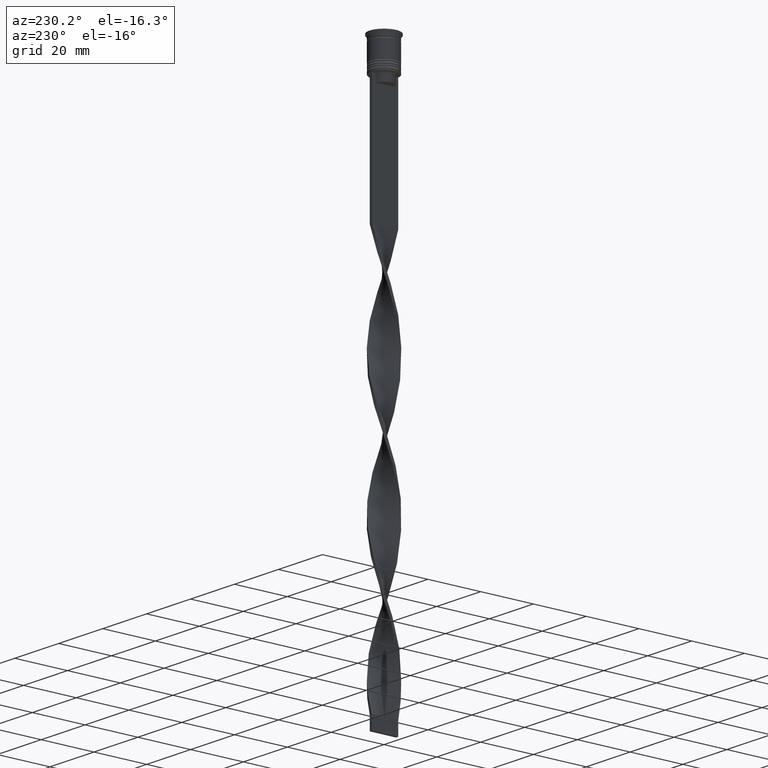
[diagram: clean part render]
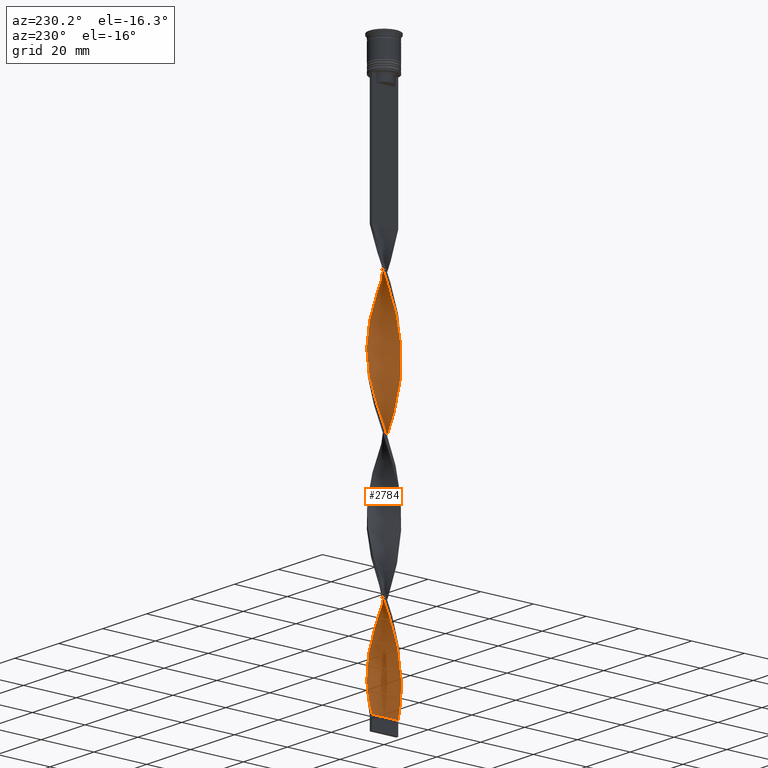
[diagram: same view with one face highlighted and labeled with its STEP entity id]
A machine part, auxiliary view. The second image highlights one B-rep face of the part: STEP entity #2784.
In plain terms, the highlighted face is a freeform B-spline surface patch.
Its self-contained STEP definition (entity closure, byte-faithful):
#11 = CARTESIAN_POINT ( 'NONE',  ( 4.863729793965001491, 1.345712789752185667, -138.8431372549019329 ) ) ;
#37 = CARTESIAN_POINT ( 'NONE',  ( 3.688768818211570100, -3.412181795536402884, -122.7745098039215605 ) ) ;
#40 = CARTESIAN_POINT ( 'NONE',  ( -1.857150046639456153, 4.692313302143462650, -112.5490196078431495 ) ) ;
#49 = CARTESIAN_POINT ( 'NONE',  ( -1.410234138924801428, 4.822990739511222813, -111.0882352941176379 ) ) ;
#52 = CARTESIAN_POINT ( 'NONE',  ( -4.863729793965000603, -1.345712789752187222, -89.17647058823527573 ) ) ;
#63 = CARTESIAN_POINT ( 'NONE',  ( -4.004954025026647102, -3.070367026697014889, -141.7647058823529562 ) ) ;
#64 = CARTESIAN_POINT ( 'NONE',  ( -4.863729793965000603, -1.345712789752187222, -89.17647058823528994 ) ) ;
#70 = CARTESIAN_POINT ( 'NONE',  ( -0.03668176878985203448, 5.046331823121015248, -106.7058823529411882 ) ) ;
#81 = CARTESIAN_POINT ( 'NONE',  ( -4.291403454590827060, -2.614164568256162280, -93.55882352941176805 ) ) ;
#88 = CARTESIAN_POINT ( 'NONE',  ( 5.024805061206822465, 0.03652529083100720941, -81.87254901960783116 ) ) ;
#101 = CARTESIAN_POINT ( 'NONE',  ( -4.500940532747438105, 2.282179822423430871, -77.49019607843136725 ) ) ;
#107 = CARTESIAN_POINT ( 'NONE',  ( -3.057269382251585732, 3.987869597209392047, -116.9313725490195992 ) ) ;
#108 = CARTESIAN_POINT ( 'NONE',  ( 5.024805061206825130, -0.03652529083100948537, -134.4607843137254974 ) ) ;
#121 = CARTESIAN_POINT ( 'NONE',  ( -0.4999999999999993339, 4.999999999999999112, -207.5000000000000000 ) ) ;
#133 = CARTESIAN_POINT ( 'NONE',  ( -0.5000000000000006661, -5.000000000000000888, -108.1666666666666572 ) ) ;
#143 = CARTESIAN_POINT ( 'NONE',  ( 4.004954025026647102, 3.070367026697015778, -191.4313725490196134 ) ) ;
#152 = CARTESIAN_POINT ( 'NONE',  ( 3.372583611396492209, -3.753996564375790435, -121.3137254901960631 ) ) ;
#159 = CARTESIAN_POINT ( 'NONE',  ( 4.698685634663579691, -1.781110133205159762, -175.3627450980391984 ) ) ;
#161 = CARTESIAN_POINT ( 'NONE',  ( 4.945959710900135420, -0.8874021287740040398, -178.2843137254901933 ) ) ;
#167 = CARTESIAN_POINT ( 'NONE',  ( 0.5000000000000000000, 5.000000000000000888, -58.50000000000000000 ) ) ;
#170 = CARTESIAN_POINT ( 'NONE',  ( -3.737982676843116803, -3.358196764280017010, -195.8137254901960773 ) ) ;
#195 = CARTESIAN_POINT ( 'NONE',  ( 4.698685634663580579, 1.781110133205161983, -140.3039215686274588 ) ) ;
#209 = CARTESIAN_POINT ( 'NONE',  ( -3.372583611396491321, 3.753996564375790435, -170.9803921568627629 ) ) ;
#212 = CARTESIAN_POINT ( 'NONE',  ( 3.426799919866744482, 3.704571868705843762, -147.6078431372548891 ) ) ;
#227 = CARTESIAN_POINT ( 'NONE',  ( -2.207052246521971739, 4.514301760086749660, -166.5980392156862706 ) ) ;
#230 = CARTESIAN_POINT ( 'NONE',  ( -5.024805061206825130, 0.03652529083100775065, -184.1274509803921546 ) ) ;
#249 = CARTESIAN_POINT ( 'NONE',  ( -5.021420494578373805, 0.5021420494578375804, -182.6666666666666856 ) ) ;
#254 = CARTESIAN_POINT ( 'NONE',  ( -4.698685634663580579, 1.781110133205158430, -125.6960784313725412 ) ) ;
#275 = CARTESIAN_POINT ( 'NONE',  ( -4.049165433819488236, 3.011821659854190703, -121.3137254901960631 ) ) ;
#348 = CARTESIAN_POINT ( 'NONE',  ( -0.9633182312101493672, 4.953668176878984752, -109.6274509803921546 ) ) ;
#356 = CARTESIAN_POINT ( 'NONE',  ( 1.339972216233586311, 4.842981980115355078, -102.3235294117646959 ) ) ;
#369 = CARTESIAN_POINT ( 'NONE',  ( -5.024805061206823353, -0.03652529083100779922, -131.5392156862745310 ) ) ;
#371 = CARTESIAN_POINT ( 'NONE',  ( -4.945959710900137196, -0.8874021287740051500, -87.71568627450979250 ) ) ;
#378 = CARTESIAN_POINT ( 'NONE',  ( -0.8912038472716541371, -4.967148691534571725, -153.4509803921568789 ) ) ;
#391 = CARTESIAN_POINT ( 'NONE',  ( 5.028189627835276454, -0.4290914677958224122, -179.7450980392157192 ) ) ;
#392 = CARTESIAN_POINT ( 'NONE',  ( -1.410234138924802982, -4.822990739511224589, -105.2450980392156765 ) ) ;
#400 = CARTESIAN_POINT ( 'NONE',  ( 0.8912038472716534709, 4.967148691534572613, -103.7843137254901791 ) ) ;
#402 = FACE_OUTER_BOUND ( 'NONE', #1215, .T. ) ;
#412 = CARTESIAN_POINT ( 'NONE',  ( 2.207052246521970851, 4.514301760086748772, -99.40196078431372939 ) ) ;
#413 = CARTESIAN_POINT ( 'NONE',  ( 4.672296720828054362, -1.849227771946825527, -128.6176470588235361 ) ) ;
#416 = CARTESIAN_POINT ( 'NONE',  ( -4.291403454590827060, -2.614164568256162280, -93.55882352941176805 ) ) ;
#432 = CARTESIAN_POINT ( 'NONE',  ( 4.533641475362163220, -2.216507476658133413, -74.56862745098038658 ) ) ;
#435 = CARTESIAN_POINT ( 'NONE',  ( -0.8912038472716528048, 4.967148691534573501, -62.88235294117647811 ) ) ;
#446 = CARTESIAN_POINT ( 'NONE',  ( 1.788740585195521593, 4.718815268696137544, -200.1960784313725981 ) ) ;
#447 = CARTESIAN_POINT ( 'NONE',  ( 1.339972216233586311, 4.842981980115355078, -201.6568627450980387 ) ) ;
#456 = CARTESIAN_POINT ( 'NONE',  ( -4.004954025026648878, 3.070367026697015778, -173.9019607843137294 ) ) ;
#470 = CARTESIAN_POINT ( 'NONE',  ( -2.625363907848424105, 4.309788251477359999, -168.0588235294117680 ) ) ;
#473 = CARTESIAN_POINT ( 'NONE',  ( -2.998973759622457269, 4.031892407926575217, -169.5196078431372371 ) ) ;
#482 = CARTESIAN_POINT ( 'NONE',  ( 0.4272610392409007529, 5.006740257327792598, -204.5784313725490335 ) ) ;
#490 = CARTESIAN_POINT ( 'NONE',  ( -1.339972216233586977, 4.842981980115355967, -163.6764705882352757 ) ) ;
#504 = CARTESIAN_POINT ( 'NONE',  ( 5.028189627835276454, -0.4290914677958224122, -179.7450980392157476 ) ) ;
#505 = CARTESIAN_POINT ( 'NONE',  ( 1.788740585195521371, -4.718815268696139320, -115.4705882352941018 ) ) ;
#518 = CARTESIAN_POINT ( 'NONE',  ( 2.272444445637943566, 4.481740313928203712, -151.9901960784313530 ) ) ;
#529 = VERTEX_POINT ( 'NONE', #866 ) ;
#533 = CARTESIAN_POINT ( 'NONE',  ( -3.737982676843116803, -3.358196764280017010, -195.8137254901960773 ) ) ;
#535 = CARTESIAN_POINT ( 'NONE',  ( 4.004954025026647990, -3.070367026697017110, -124.2352941176470580 ) ) ;
#548 = CARTESIAN_POINT ( 'NONE',  ( 2.272444445637943566, 4.481740313928203712, -151.9901960784313530 ) ) ;
#552 = CARTESIAN_POINT ( 'NONE',  ( -3.057269382251585732, 3.987869597209392047, -116.9313725490195992 ) ) ;
#578 = CARTESIAN_POINT ( 'NONE',  ( -0.8912038472716541371, -4.967148691534571725, -153.4509803921568789 ) ) ;
#616 = VERTEX_POINT ( 'NONE', #121 ) ;
#646 = CARTESIAN_POINT ( 'NONE',  ( -0.4999999999999993339, 4.999999999999999112, -207.5000000000000000 ) ) ;
#648 = CARTESIAN_POINT ( 'NONE',  ( 3.737982676843115026, -3.358196764280016566, -70.18627450980390847 ) ) ;
#655 = CARTESIAN_POINT ( 'NONE',  ( 4.291403454590825284, -2.614164568256161836, -73.10784313725488914 ) ) ;
#657 = CARTESIAN_POINT ( 'NONE',  ( -2.625363907848424105, 4.309788251477359999, -68.72549019607842524 ) ) ;
#665 = CARTESIAN_POINT ( 'NONE',  ( 2.625363907848422773, 4.309788251477359111, -97.94117647058824616 ) ) ;
#674 = CARTESIAN_POINT ( 'NONE',  ( -4.004954025026647102, -3.070367026697014889, -141.7647058823529562 ) ) ;
#676 = CARTESIAN_POINT ( 'NONE',  ( -4.049165433819489124, -3.011821659854192479, -95.01960784313725128 ) ) ;
#682 = CARTESIAN_POINT ( 'NONE',  ( 0.9633182312101489231, -4.953668176878983864, -59.96078431372549034 ) ) ;
#686 = CARTESIAN_POINT ( 'NONE',  ( -2.687738844636428315, 4.271167325712943885, -115.4705882352940876 ) ) ;
#693 = CARTESIAN_POINT ( 'NONE',  ( -2.998973759622455493, -4.031892407926574329, -146.1470588235294201 ) ) ;
#706 = CARTESIAN_POINT ( 'NONE',  ( 3.688768818211569211, 3.412181795536400664, -192.8921568627450824 ) ) ;
#709 = CARTESIAN_POINT ( 'NONE',  ( -0.03668176878985068140, -5.046331823121016136, -109.6274509803921404 ) ) ;
#714 = CARTESIAN_POINT ( 'NONE',  ( -2.625363907848423661, -4.309788251477358223, -147.6078431372548891 ) ) ;
#716 = CARTESIAN_POINT ( 'NONE',  ( -4.945959710900137196, -0.8874021287740051500, -87.71568627450979250 ) ) ;
#722 = CARTESIAN_POINT ( 'NONE',  ( 4.533641475362163220, -2.216507476658133413, -173.9019607843137294 ) ) ;
#723 = CARTESIAN_POINT ( 'NONE',  ( 1.339972216233587865, -4.842981980115355967, -114.0098039215686185 ) ) ;
#731 = CARTESIAN_POINT ( 'NONE',  ( 1.788740585195521593, 4.718815268696137544, -100.8627450980392126 ) ) ;
#732 = CARTESIAN_POINT ( 'NONE',  ( 4.698685634663580579, 1.781110133205161983, -140.3039215686274588 ) ) ;
#735 = CARTESIAN_POINT ( 'NONE',  ( -3.372583611396491321, 3.753996564375790879, -71.64705882352943433 ) ) ;
#741 = CARTESIAN_POINT ( 'NONE',  ( 5.021420494578371141, 0.5021420494578369143, -182.6666666666666572 ) ) ;
#742 = CARTESIAN_POINT ( 'NONE',  ( 5.021420494578372029, 0.5021420494578369143, -182.6666666666666856 ) ) ;
#743 = CARTESIAN_POINT ( 'NONE',  ( -4.672296720828054362, 1.849227771946823751, -78.95098039215686470 ) ) ;
#752 = CARTESIAN_POINT ( 'NONE',  ( 4.500940532747438994, -2.282179822423430871, -127.1568627450980102 ) ) ;
#764 = CARTESIAN_POINT ( 'NONE',  ( 4.291403454590825284, -2.614164568256161836, -172.4411764705882035 ) ) ;
#772 = CARTESIAN_POINT ( 'NONE',  ( 5.028189627835278230, 0.4290914677958235779, -135.9215686274509665 ) ) ;
#780 = CARTESIAN_POINT ( 'NONE',  ( 3.737982676843115026, -3.358196764280016566, -169.5196078431372371 ) ) ;
#786 = CARTESIAN_POINT ( 'NONE',  ( -4.863729793965000603, -1.345712789752187222, -188.5098039215686185 ) ) ;
#789 = CARTESIAN_POINT ( 'NONE',  ( -4.843652908908672394, 1.416275721470217963, -179.7450980392157192 ) ) ;
#810 = CARTESIAN_POINT ( 'NONE',  ( -4.049165433819489124, -3.011821659854192479, -194.3529411764705799 ) ) ;
#831 = CARTESIAN_POINT ( 'NONE',  ( -4.500940532747438105, 2.282179822423430871, -176.8235294117647243 ) ) ;
#834 = CARTESIAN_POINT ( 'NONE',  ( 4.533641475362164996, 2.216507476658134301, -141.7647058823529562 ) ) ;
#842 = CARTESIAN_POINT ( 'NONE',  ( 0.5000000000000000000, -4.999999999999999112, -58.50000000000000000 ) ) ;
#846 = CARTESIAN_POINT ( 'NONE',  ( 0.5000000000000000000, 5.000000000000000888, -157.8333333333333144 ) ) ;
#852 = CARTESIAN_POINT ( 'NONE',  ( -1.339972216233586755, -4.842981980115355078, -151.9901960784313530 ) ) ;
#866 = CARTESIAN_POINT ( 'NONE',  ( 0.5000000000000000000, -4.999999999999999112, -58.50000000000000000 ) ) ;
#871 = CARTESIAN_POINT ( 'NONE',  ( -4.863729793964998827, 1.345712789752186778, -127.1568627450980102 ) ) ;
#878 = EDGE_CURVE ( 'NONE', #3680, #616, #3865, .T. ) ;
#897 = CARTESIAN_POINT ( 'NONE',  ( -5.028189627835275566, 0.4290914677958205803, -130.0784313725490335 ) ) ;
#964 = CARTESIAN_POINT ( 'NONE',  ( 4.932536701743520879, 0.9592088854640268281, -84.79411764705882604 ) ) ;
#966 = CARTESIAN_POINT ( 'NONE',  ( 2.998973759622457269, -4.031892407926575217, -119.8529411764705799 ) ) ;
#975 = CARTESIAN_POINT ( 'NONE',  ( -4.843652908908670618, -1.416275721470218185, -135.9215686274509665 ) ) ;
#978 = ORIENTED_EDGE ( 'NONE', *, *, #1106, .F. ) ;
#983 = CARTESIAN_POINT ( 'NONE',  ( -1.857150046639456153, 4.692313302143462650, -112.5490196078431495 ) ) ;
#995 = CARTESIAN_POINT ( 'NONE',  ( 1.339972216233586311, 4.842981980115355078, -102.3235294117646959 ) ) ;
#996 = CARTESIAN_POINT ( 'NONE',  ( -3.426799919866744482, -3.704571868705844206, -97.94117647058824616 ) ) ;
#1005 = CARTESIAN_POINT ( 'NONE',  ( -0.4999999999999993339, 4.999999999999999112, -108.1666666666666572 ) ) ;
#1008 = CARTESIAN_POINT ( 'NONE',  ( -3.688768818211570100, 3.412181795536402440, -73.10784313725488914 ) ) ;
#1017 = CARTESIAN_POINT ( 'NONE',  ( -0.03668176878985203448, 5.046331823121015248, -206.0392156862745026 ) ) ;
#1018 = CARTESIAN_POINT ( 'NONE',  ( -4.698685634663581467, -1.781110133205160206, -90.63725490196078738 ) ) ;
#1024 = CARTESIAN_POINT ( 'NONE',  ( -0.9633182312101493672, 4.953668176878983864, -109.6274509803921404 ) ) ;
#1036 = CARTESIAN_POINT ( 'NONE',  ( 4.049165433819487347, -3.011821659854190703, -71.64705882352942012 ) ) ;
#1038 = CARTESIAN_POINT ( 'NONE',  ( 0.4272610392409007529, 5.006740257327792598, -204.5784313725490335 ) ) ;
#1039 = EDGE_CURVE ( 'NONE', #529, #616, #1718, .T. ) ;
#1040 = CARTESIAN_POINT ( 'NONE',  ( 0.8912038472716528048, -4.967148691534573501, -112.5490196078431495 ) ) ;
#1046 =( BOUNDED_SURFACE ( )  B_SPLINE_SURFACE ( 1, 2, ( 
 ( #2201, #3177, #1309, #435, #1324, #2553, #2873, #657, #3444, #735, #1008, #3763, #3802, #1941, #3782, #2221, #2264, #1346, #1685, #2821, #716, #52, #2240, #3465, #416, #676, #1918, #1903, #3162, #2576, #1659, #3143, #1051, #1640, #133, #3122, #1290, #3501, #1975, #1622, #2842, #3724, #966, #152, #3275, #535, #2917, #752, #1139, #1102, #1995, #3869, #1776, #772, #3592, #3815, #195, #834, #1740, #3293, #2670, #212, #3886, #3220, #518, #1759, #2333, #2052, #2935, #1440, #2031, #3234, #490, #2351, #1401, #1066, #473, #3552, #1716, #456, #2373, #2973, #2072, #789, #2013, #2990, #230, #2957, #2594, #3569, #3830, #2298, #3536, #810, #170, #2637, #3254, #3515, #1083, #1699, #1424, #1382, #2614 ),
 ( #2316, #3852, #2652, #1121, #2734, #1588, #3755, #2532, #648, #2414, #1299, #3910, #3930, #2230, #1487, #2089, #3154, #3313, #2713, #3951, #2190, #1161, #3736, #1821, #3453, #3111, #1891, #665, #2395, #1180, #995, #1199, #1508, #1608, #3658, #348, #3633, #40, #1911, #686, #552, #2810, #1795, #275, #2437, #1276, #254, #871, #3613, #897, #369, #2513, #2113, #975, #3133, #2833, #2211, #63, #3412, #3337, #1931, #3431, #1461, #2691, #852, #578, #3014, #3037, #1373, #3493, #3793, #2584, #2603, #1647, #2924, #1058, #780, #2022, #2252, #722, #159, #3821, #3507, #391, #1388, #741, #2324, #1984, #1707, #3476, #3209, #2288, #706, #2886, #1072, #1316, #3168, #446, #2305, #3772, #1038, #1017, #3543 ) ),
 .UNSPECIFIED., .F., .F., .F. ) 
 B_SPLINE_SURFACE_WITH_KNOTS ( ( 2, 2 ),
 ( 3, 2, 2, 2, 2, 2, 2, 2, 2, 2, 2, 2, 2, 2, 2, 2, 2, 2, 2, 2, 2, 2, 2, 2, 2, 2, 2, 2, 2, 2, 2, 2, 2, 2, 2, 2, 2, 2, 2, 2, 2, 2, 2, 2, 2, 2, 2, 2, 2, 2, 2, 3 ),
 ( 0.000000000000000000, 1.000000000000000000 ),
 ( 0.000000000000000000, 0.01470588235294117627, 0.02941176470588235253, 0.04411764705882353227, 0.05882352941176470507, 0.07352941176470588480, 0.08823529411764706454, 0.1029411764705882304, 0.1176470588235294101, 0.1323529411764705899, 0.1470588235294117696, 0.1617647058823529493, 0.1764705882352941291, 0.1911764705882352811, 0.2058823529411764608, 0.2205882352941176405, 0.2352941176470588203, 0.2500000000000000000, 0.2647058823529411797, 0.2794117647058823595, 0.2941176470588235392, 0.3088235294117647189, 0.3235294117647058987, 0.3382352941176470784, 0.3529411764705882582, 0.3676470588235294379, 0.3823529411764705621, 0.3970588235294117418, 0.4117647058823529216, 0.4264705882352941013, 0.4411764705882352811, 0.4558823529411764608, 0.4705882352941176405, 0.4852941176470588203, 0.5000000000000000000, 0.5147058823529411242, 0.5294117647058823595, 0.5441176470588234837, 0.5588235294117647189, 0.5735294117647058432, 0.5882352941176470784, 0.6029411764705882026, 0.6176470588235294379, 0.6323529411764705621, 0.6470588235294117974, 0.6617647058823529216, 0.6764705882352941568, 0.6911764705882352811, 0.7058823529411765163, 0.7205882352941176405, 0.7352941176470588758, 0.7500000000000000000 ),
 .UNSPECIFIED. ) 
 GEOMETRIC_REPRESENTATION_ITEM ( )  RATIONAL_B_SPLINE_SURFACE ( (
 ( 1.000000000000000000, 0.9957341762950344677, 1.000000000000000000, 0.9957341762950344677, 1.000000000000000000, 0.9957341762950344677, 1.000000000000000000, 0.9957341762950344677, 1.000000000000000000, 0.9957341762950344677, 1.000000000000000000, 0.9957341762950344677, 1.000000000000000000, 0.9957341762950344677, 1.000000000000000000, 0.9957341762950344677, 1.000000000000000000, 0.9957341762950344677, 1.000000000000000000, 0.9957341762950344677, 1.000000000000000000, 0.9957341762950344677, 1.000000000000000000, 0.9957341762950344677, 1.000000000000000000, 0.9957341762950344677, 1.000000000000000000, 0.9957341762950344677, 1.000000000000000000, 0.9957341762950344677, 1.000000000000000000, 0.9957341762950344677, 1.000000000000000000, 0.9957341762950344677, 1.000000000000000000, 0.9957341762950344677, 1.000000000000000000, 0.9957341762950344677, 1.000000000000000000, 0.9957341762950344677, 1.000000000000000000, 0.9957341762950344677, 1.000000000000000000, 0.9957341762950344677, 1.000000000000000000, 0.9957341762950344677, 1.000000000000000000, 0.9957341762950344677, 1.000000000000000000, 0.9957341762950344677, 1.000000000000000000, 0.9957341762950344677, 1.000000000000000000, 0.9957341762950344677, 1.000000000000000000, 0.9957341762950344677, 1.000000000000000000, 0.9957341762950344677, 1.000000000000000000, 0.9957341762950344677, 1.000000000000000000, 0.9957341762950344677, 1.000000000000000000, 0.9957341762950344677, 1.000000000000000000, 0.9957341762950344677, 1.000000000000000000, 0.9957341762950344677, 1.000000000000000000, 0.9957341762950344677, 1.000000000000000000, 0.9957341762950344677, 1.000000000000000000, 0.9957341762950344677, 1.000000000000000000, 0.9957341762950344677, 1.000000000000000000, 0.9957341762950344677, 1.000000000000000000, 0.9957341762950344677, 1.000000000000000000, 0.9957341762950344677, 1.000000000000000000, 0.9957341762950344677, 1.000000000000000000, 0.9957341762950344677, 1.000000000000000000, 0.9957341762950344677, 1.000000000000000000, 0.9957341762950344677, 1.000000000000000000, 0.9957341762950344677, 1.000000000000000000, 0.9957341762950344677, 1.000000000000000000, 0.9957341762950344677, 1.000000000000000000, 0.9957341762950344677, 1.000000000000000000, 0.9957341762950344677, 1.000000000000000000, 0.9957341762950344677, 1.000000000000000000),
 ( 1.000000000000000000, 0.9957341762950344677, 1.000000000000000000, 0.9957341762950344677, 1.000000000000000000, 0.9957341762950344677, 1.000000000000000000, 0.9957341762950344677, 1.000000000000000000, 0.9957341762950344677, 1.000000000000000000, 0.9957341762950344677, 1.000000000000000000, 0.9957341762950344677, 1.000000000000000000, 0.9957341762950344677, 1.000000000000000000, 0.9957341762950344677, 1.000000000000000000, 0.9957341762950344677, 1.000000000000000000, 0.9957341762950344677, 1.000000000000000000, 0.9957341762950344677, 1.000000000000000000, 0.9957341762950344677, 1.000000000000000000, 0.9957341762950344677, 1.000000000000000000, 0.9957341762950344677, 1.000000000000000000, 0.9957341762950344677, 1.000000000000000000, 0.9957341762950344677, 1.000000000000000000, 0.9957341762950344677, 1.000000000000000000, 0.9957341762950344677, 1.000000000000000000, 0.9957341762950344677, 1.000000000000000000, 0.9957341762950344677, 1.000000000000000000, 0.9957341762950344677, 1.000000000000000000, 0.9957341762950344677, 1.000000000000000000, 0.9957341762950344677, 1.000000000000000000, 0.9957341762950344677, 1.000000000000000000, 0.9957341762950344677, 1.000000000000000000, 0.9957341762950344677, 1.000000000000000000, 0.9957341762950344677, 1.000000000000000000, 0.9957341762950344677, 1.000000000000000000, 0.9957341762950344677, 1.000000000000000000, 0.9957341762950344677, 1.000000000000000000, 0.9957341762950344677, 1.000000000000000000, 0.9957341762950344677, 1.000000000000000000, 0.9957341762950344677, 1.000000000000000000, 0.9957341762950344677, 1.000000000000000000, 0.9957341762950344677, 1.000000000000000000, 0.9957341762950344677, 1.000000000000000000, 0.9957341762950344677, 1.000000000000000000, 0.9957341762950344677, 1.000000000000000000, 0.9957341762950344677, 1.000000000000000000, 0.9957341762950344677, 1.000000000000000000, 0.9957341762950344677, 1.000000000000000000, 0.9957341762950344677, 1.000000000000000000, 0.9957341762950344677, 1.000000000000000000, 0.9957341762950344677, 1.000000000000000000, 0.9957341762950344677, 1.000000000000000000, 0.9957341762950344677, 1.000000000000000000, 0.9957341762950344677, 1.000000000000000000, 0.9957341762950344677, 1.000000000000000000, 0.9957341762950344677, 1.000000000000000000, 0.9957341762950344677, 1.000000000000000000) ) ) 
 REPRESENTATION_ITEM ( '' )  SURFACE ( )  );
#1048 = CARTESIAN_POINT ( 'NONE',  ( -4.843652908908670618, -1.416275721470218185, -135.9215686274509665 ) ) ;
#1049 = CARTESIAN_POINT ( 'NONE',  ( 4.945959710900137196, 0.8874021287740044839, -137.3823529411764639 ) ) ;
#1051 = CARTESIAN_POINT ( 'NONE',  ( -1.410234138924802982, -4.822990739511224589, -105.2450980392156765 ) ) ;
#1058 = CARTESIAN_POINT ( 'NONE',  ( 3.426799919866742705, -3.704571868705843318, -168.0588235294117680 ) ) ;
#1059 = CARTESIAN_POINT ( 'NONE',  ( -2.687738844636430091, -4.271167325712943885, -100.8627450980392126 ) ) ;
#1066 = CARTESIAN_POINT ( 'NONE',  ( -2.625363907848424105, 4.309788251477359999, -168.0588235294117680 ) ) ;
#1072 = CARTESIAN_POINT ( 'NONE',  ( 2.998973759622456825, 4.031892407926573441, -195.8137254901960773 ) ) ;
#1083 = CARTESIAN_POINT ( 'NONE',  ( -2.272444445637943122, -4.481740313928203712, -201.6568627450980387 ) ) ;
#1094 = CARTESIAN_POINT ( 'NONE',  ( 3.688768818211569211, 3.412181795536400664, -192.8921568627450824 ) ) ;
#1099 = CARTESIAN_POINT ( 'NONE',  ( -4.049165433819489124, -3.011821659854192035, -194.3529411764705799 ) ) ;
#1102 = CARTESIAN_POINT ( 'NONE',  ( 4.843652908908673282, -1.416275721470216187, -130.0784313725490335 ) ) ;
#1106 = EDGE_CURVE ( 'NONE', #1154, #3680, #3404, .T. ) ;
#1118 = CARTESIAN_POINT ( 'NONE',  ( -4.932536701743521768, 0.9592088854640273832, -181.2058823529411598 ) ) ;
#1121 = CARTESIAN_POINT ( 'NONE',  ( 1.857150046639456153, -4.692313302143462650, -62.88235294117647811 ) ) ;
#1136 = CARTESIAN_POINT ( 'NONE',  ( 1.857150046639458152, 4.692313302143463538, -153.4509803921568789 ) ) ;
#1139 = CARTESIAN_POINT ( 'NONE',  ( 4.672296720828054362, -1.849227771946825527, -128.6176470588235361 ) ) ;
#1154 = VERTEX_POINT ( 'NONE', #167 ) ;
#1157 = CARTESIAN_POINT ( 'NONE',  ( -0.5000000000000006661, -5.000000000000000888, -207.5000000000000000 ) ) ;
#1161 = CARTESIAN_POINT ( 'NONE',  ( 4.500940532747437217, 2.282179822423429982, -89.17647058823527573 ) ) ;
#1175 = CARTESIAN_POINT ( 'NONE',  ( 4.291403454590827948, 2.614164568256161836, -143.2254901960784537 ) ) ;
#1180 = CARTESIAN_POINT ( 'NONE',  ( 1.788740585195521593, 4.718815268696137544, -100.8627450980392126 ) ) ;
#1199 = CARTESIAN_POINT ( 'NONE',  ( 0.8912038472716534709, 4.967148691534572613, -103.7843137254901933 ) ) ;
#1215 = EDGE_LOOP ( 'NONE', ( #1527, #2519, #3796, #978 ) ) ;
#1219 = CARTESIAN_POINT ( 'NONE',  ( 2.687738844636428759, -4.271167325712942997, -165.1372549019608016 ) ) ;
#1264 = CARTESIAN_POINT ( 'NONE',  ( -1.788740585195520039, -4.718815268696138432, -150.5294117647058840 ) ) ;
#1276 = CARTESIAN_POINT ( 'NONE',  ( -4.533641475362163220, 2.216507476658134745, -124.2352941176470580 ) ) ;
#1278 = CARTESIAN_POINT ( 'NONE',  ( -4.932536701743521768, 0.9592088854640273832, -81.87254901960783116 ) ) ;
#1288 = CARTESIAN_POINT ( 'NONE',  ( -5.024805061206823353, -0.03652529083100779922, -131.5392156862745310 ) ) ;
#1290 = CARTESIAN_POINT ( 'NONE',  ( 0.4272610392408998647, -5.006740257327794374, -111.0882352941176379 ) ) ;
#1299 = CARTESIAN_POINT ( 'NONE',  ( 4.291403454590825284, -2.614164568256161836, -73.10784313725488914 ) ) ;
#1300 = CARTESIAN_POINT ( 'NONE',  ( -4.533641475362164996, -2.216507476658135189, -92.09803921568628482 ) ) ;
#1306 = CARTESIAN_POINT ( 'NONE',  ( 4.252947278887042160, 2.676273424560221770, -90.63725490196078738 ) ) ;
#1309 = CARTESIAN_POINT ( 'NONE',  ( -0.4272610392409009750, 5.006740257327794374, -61.42156862745097357 ) ) ;
#1316 = CARTESIAN_POINT ( 'NONE',  ( 2.625363907848422773, 4.309788251477359111, -197.2745098039215463 ) ) ;
#1317 = CARTESIAN_POINT ( 'NONE',  ( -3.737982676843116803, -3.358196764280017010, -96.48039215686274872 ) ) ;
#1322 = CARTESIAN_POINT ( 'NONE',  ( 1.410234138924802538, -4.822990739511222813, -160.7549019607842808 ) ) ;
#1324 = CARTESIAN_POINT ( 'NONE',  ( -1.339972216233586977, 4.842981980115355967, -64.34313725490196134 ) ) ;
#1332 = CARTESIAN_POINT ( 'NONE',  ( 2.272444445637942234, -4.481740313928202823, -64.34313725490196134 ) ) ;
#1337 = CARTESIAN_POINT ( 'NONE',  ( -4.843652908908672394, 1.416275721470217741, -80.41176470588234793 ) ) ;
#1343 = CARTESIAN_POINT ( 'NONE',  ( 4.004954025026647102, 3.070367026697015778, -92.09803921568628482 ) ) ;
#1346 = CARTESIAN_POINT ( 'NONE',  ( -5.021420494578372917, 0.5021420494578375804, -83.33333333333332860 ) ) ;
#1357 = CARTESIAN_POINT ( 'NONE',  ( -5.021420494578373805, 0.5021420494578375804, -83.33333333333332860 ) ) ;
#1367 = EDGE_CURVE ( 'NONE', #529, #1154, #1726, .T. ) ;
#1373 = CARTESIAN_POINT ( 'NONE',  ( 0.5000000000000000000, -4.999999999999999112, -157.8333333333333144 ) ) ;
#1382 = CARTESIAN_POINT ( 'NONE',  ( -0.9633182312101485900, -4.953668176878986529, -206.0392156862745026 ) ) ;
#1388 = CARTESIAN_POINT ( 'NONE',  ( 5.024805061206822465, 0.03652529083100720941, -181.2058823529411598 ) ) ;
#1396 = CARTESIAN_POINT ( 'NONE',  ( 4.049165433819487347, 3.011821659854193367, -144.6862745098039227 ) ) ;
#1401 = CARTESIAN_POINT ( 'NONE',  ( -2.207052246521971739, 4.514301760086749660, -166.5980392156862706 ) ) ;
#1413 = CARTESIAN_POINT ( 'NONE',  ( 3.372583611396490433, 3.753996564375789102, -194.3529411764705799 ) ) ;
#1424 = CARTESIAN_POINT ( 'NONE',  ( -1.410234138924802982, -4.822990739511224589, -204.5784313725490335 ) ) ;
#1437 = CARTESIAN_POINT ( 'NONE',  ( -0.8912038472716528048, 4.967148691534573501, -162.2156862745098351 ) ) ;
#1440 = CARTESIAN_POINT ( 'NONE',  ( 0.03668176878985105610, 5.046331823121016136, -159.2941176470588118 ) ) ;
#1458 = CARTESIAN_POINT ( 'NONE',  ( -4.843652908908672394, 1.416275721470217741, -179.7450980392157476 ) ) ;
#1461 = CARTESIAN_POINT ( 'NONE',  ( -2.207052246521973515, -4.514301760086746995, -149.0686274509803866 ) ) ;
#1482 = CARTESIAN_POINT ( 'NONE',  ( 1.410234138924801428, 4.822990739511224589, -154.9117647058823479 ) ) ;
#1487 = CARTESIAN_POINT ( 'NONE',  ( 4.945959710900135420, -0.8874021287740040398, -78.95098039215686470 ) ) ;
#1508 = CARTESIAN_POINT ( 'NONE',  ( 0.4272610392409007529, 5.006740257327792598, -105.2450980392156765 ) ) ;
#1527 = ORIENTED_EDGE ( 'NONE', *, *, #1367, .F. ) ;
#1584 = CARTESIAN_POINT ( 'NONE',  ( 3.372583611396492209, -3.753996564375789990, -121.3137254901960773 ) ) ;
#1588 = CARTESIAN_POINT ( 'NONE',  ( 2.687738844636428315, -4.271167325712943885, -65.80392156862747299 ) ) ;
#1595 = CARTESIAN_POINT ( 'NONE',  ( -2.272444445637943122, 4.481740313928201935, -114.0098039215686185 ) ) ;
#1608 = CARTESIAN_POINT ( 'NONE',  ( -0.03668176878985203448, 5.046331823121015248, -106.7058823529412024 ) ) ;
#1611 = CARTESIAN_POINT ( 'NONE',  ( -0.8912038472716528048, 4.967148691534573501, -62.88235294117647101 ) ) ;
#1619 = CARTESIAN_POINT ( 'NONE',  ( -4.291403454590824396, 2.614164568256162280, -122.7745098039215605 ) ) ;
#1622 = CARTESIAN_POINT ( 'NONE',  ( 1.788740585195521371, -4.718815268696139320, -115.4705882352940876 ) ) ;
#1628 = CARTESIAN_POINT ( 'NONE',  ( -0.5000000000000006661, -5.000000000000000888, -207.5000000000000000 ) ) ;
#1637 = CARTESIAN_POINT ( 'NONE',  ( 3.372583611396490433, 3.753996564375789102, -95.01960784313726549 ) ) ;
#1640 = CARTESIAN_POINT ( 'NONE',  ( -0.9633182312101485900, -4.953668176878986529, -106.7058823529412024 ) ) ;
#1645 = CARTESIAN_POINT ( 'NONE',  ( -0.4999999999999997780, 1.666666666666666075, -207.5000000000000000 ) ) ;
#1647 = CARTESIAN_POINT ( 'NONE',  ( 2.687738844636428315, -4.271167325712943885, -165.1372549019608016 ) ) ;
#1656 = CARTESIAN_POINT ( 'NONE',  ( -4.932536701743520879, -0.9592088854640250517, -134.4607843137254974 ) ) ;
#1657 = CARTESIAN_POINT ( 'NONE',  ( 4.932536701743522656, -0.9592088854640269391, -131.5392156862745310 ) ) ;
#1659 = CARTESIAN_POINT ( 'NONE',  ( -2.272444445637943122, -4.481740313928203712, -102.3235294117646959 ) ) ;
#1670 = CARTESIAN_POINT ( 'NONE',  ( 4.863729793964998827, -1.345712789752187000, -176.8235294117647243 ) ) ;
#1680 = CARTESIAN_POINT ( 'NONE',  ( -3.372583611396488656, -3.753996564375789990, -144.6862745098039227 ) ) ;
#1681 = CARTESIAN_POINT ( 'NONE',  ( 4.843652908908673282, -1.416275721470216187, -130.0784313725490335 ) ) ;
#1685 = CARTESIAN_POINT ( 'NONE',  ( -5.024805061206825130, 0.03652529083100775065, -84.79411764705882604 ) ) ;
#1699 = CARTESIAN_POINT ( 'NONE',  ( -1.857150046639457708, -4.692313302143463538, -203.1176470588235361 ) ) ;
#1707 = CARTESIAN_POINT ( 'NONE',  ( 4.672296720828052585, 1.849227771946823973, -187.0490196078431211 ) ) ;
#1709 = CARTESIAN_POINT ( 'NONE',  ( 4.843652908908670618, 1.416275721470217741, -185.5882352941176237 ) ) ;
#1716 = CARTESIAN_POINT ( 'NONE',  ( -3.688768818211570100, 3.412181795536402440, -172.4411764705882035 ) ) ;
#1718 =( BOUNDED_CURVE ( )  B_SPLINE_CURVE ( 2, ( #3451, #682, #1927, #3166, #1332, #3789, #2270, #3490, #2562, #1036, #655, #432, #3175, #1899, #2199, #1916, #88, #3422, #964, #1955, #2573, #2537, #1306, #1343, #3462, #1637, #2523, #3779, #412, #731, #356, #400, #3119, #70, #1005, #1024, #49, #983, #1595, #3761, #107, #2854, #2870, #2281, #1619, #1972, #2818, #3722, #2238, #3800, #1288, #2219, #1656, #1048, #3441, #3499, #3195, #674, #3141, #1680, #693, #714, #2895, #1264, #2550, #378, #2841, #1938, #3160, #2499, #1322, #2260, #3483, #1219, #3413, #2586, #2005, #3186, #764, #3508, #3227, #1670, #161, #504, #2624, #742, #2604, #1709, #2306, #1727, #3841, #143, #1094, #1413, #1985, #1751, #3244, #3211, #447, #2909, #482, #3861, #2966 ),
 .UNSPECIFIED., .F., .T. ) 
 B_SPLINE_CURVE_WITH_KNOTS ( ( 3, 2, 2, 2, 2, 2, 2, 2, 2, 2, 2, 2, 2, 2, 2, 2, 2, 2, 2, 2, 2, 2, 2, 2, 2, 2, 2, 2, 2, 2, 2, 2, 2, 2, 2, 2, 2, 2, 2, 2, 2, 2, 2, 2, 2, 2, 2, 2, 2, 2, 2, 3 ),
 ( 0.000000000000000000, 0.01470588235294117453, 0.02941176470588234906, 0.04411764705882353227, 0.05882352941176469813, 0.07352941176470588480, 0.08823529411764706454, 0.1029411764705882443, 0.1176470588235293963, 0.1323529411764705899, 0.1470588235294117696, 0.1617647058823529493, 0.1764705882352941291, 0.1911764705882352811, 0.2058823529411764885, 0.2205882352941176405, 0.2352941176470587925, 0.2500000000000000000, 0.2647058823529411797, 0.2794117647058823595, 0.2941176470588235392, 0.3088235294117647189, 0.3235294117647058987, 0.3382352941176470229, 0.3529411764705882582, 0.3676470588235294379, 0.3823529411764705621, 0.3970588235294117418, 0.4117647058823529771, 0.4264705882352941013, 0.4411764705882352811, 0.4558823529411764608, 0.4705882352941175850, 0.4852941176470588203, 0.5000000000000000000, 0.5147058823529411242, 0.5294117647058823595, 0.5441176470588234837, 0.5588235294117647189, 0.5735294117647058432, 0.5882352941176470784, 0.6029411764705882026, 0.6176470588235294379, 0.6323529411764705621, 0.6470588235294117974, 0.6617647058823529216, 0.6764705882352940458, 0.6911764705882351700, 0.7058823529411765163, 0.7205882352941176405, 0.7352941176470588758, 0.7500000000000000000 ),
 .UNSPECIFIED. ) 
 CURVE ( )  GEOMETRIC_REPRESENTATION_ITEM ( )  RATIONAL_B_SPLINE_CURVE ( ( 1.000000000000000000, 0.9957341762950344677, 1.000000000000000000, 0.9957341762950344677, 1.000000000000000000, 0.9957341762950344677, 1.000000000000000000, 0.9957341762950344677, 1.000000000000000000, 0.9957341762950344677, 1.000000000000000000, 0.9957341762950344677, 1.000000000000000000, 0.9957341762950344677, 1.000000000000000000, 0.9957341762950344677, 1.000000000000000000, 0.9957341762950344677, 1.000000000000000000, 0.9957341762950344677, 1.000000000000000000, 0.9957341762950344677, 1.000000000000000000, 0.9957341762950344677, 1.000000000000000000, 0.9957341762950344677, 1.000000000000000000, 0.9957341762950344677, 1.000000000000000000, 0.9957341762950344677, 1.000000000000000000, 0.9957341762950344677, 1.000000000000000000, 0.9957341762950344677, 1.000000000000000000, 0.9957341762950344677, 1.000000000000000000, 0.9957341762950344677, 1.000000000000000000, 0.9957341762950344677, 1.000000000000000000, 0.9957341762950344677, 1.000000000000000000, 0.9957341762950344677, 1.000000000000000000, 0.9957341762950344677, 1.000000000000000000, 0.9957341762950344677, 1.000000000000000000, 0.9957341762950344677, 1.000000000000000000, 0.9957341762950344677, 1.000000000000000000, 0.9957341762950344677, 1.000000000000000000, 0.9957341762950344677, 1.000000000000000000, 0.9957341762950344677, 1.000000000000000000, 0.9957341762950344677, 1.000000000000000000, 0.9957341762950344677, 1.000000000000000000, 0.9957341762950344677, 1.000000000000000000, 0.9957341762950344677, 1.000000000000000000, 0.9957341762950344677, 1.000000000000000000, 0.9957341762950344677, 1.000000000000000000, 0.9957341762950344677, 1.000000000000000000, 0.9957341762950344677, 1.000000000000000000, 0.9957341762950344677, 1.000000000000000000, 0.9957341762950344677, 1.000000000000000000, 0.9957341762950344677, 1.000000000000000000, 0.9957341762950344677, 1.000000000000000000, 0.9957341762950344677, 1.000000000000000000, 0.9957341762950344677, 1.000000000000000000, 0.9957341762950344677, 1.000000000000000000, 0.9957341762950344677, 1.000000000000000000, 0.9957341762950344677, 1.000000000000000000, 0.9957341762950344677, 1.000000000000000000, 0.9957341762950344677, 1.000000000000000000, 0.9957341762950344677, 1.000000000000000000, 0.9957341762950344677, 1.000000000000000000, 0.9957341762950344677, 1.000000000000000000 ) ) 
 REPRESENTATION_ITEM ( '' )  );
#1726 = LINE ( 'NONE', #842, #2047 ) ;
#1727 = CARTESIAN_POINT ( 'NONE',  ( 4.500940532747436329, 2.282179822423429982, -188.5098039215686185 ) ) ;
#1740 = CARTESIAN_POINT ( 'NONE',  ( 4.291403454590827948, 2.614164568256161836, -143.2254901960784537 ) ) ;
#1751 = CARTESIAN_POINT ( 'NONE',  ( 2.625363907848422773, 4.309788251477359111, -197.2745098039215463 ) ) ;
#1755 = CARTESIAN_POINT ( 'NONE',  ( -5.028189627835278230, -0.4290914677958230783, -185.5882352941176237 ) ) ;
#1759 = CARTESIAN_POINT ( 'NONE',  ( 1.857150046639458152, 4.692313302143463538, -153.4509803921568789 ) ) ;
#1772 = CARTESIAN_POINT ( 'NONE',  ( 3.426799919866744926, 3.704571868705843762, -147.6078431372548891 ) ) ;
#1776 = CARTESIAN_POINT ( 'NONE',  ( 5.024805061206825130, -0.03652529083100948537, -134.4607843137254974 ) ) ;
#1795 = CARTESIAN_POINT ( 'NONE',  ( -3.737982676843115026, 3.358196764280016566, -119.8529411764705799 ) ) ;
#1821 = CARTESIAN_POINT ( 'NONE',  ( 4.004954025026647102, 3.070367026697015778, -92.09803921568628482 ) ) ;
#1871 = CARTESIAN_POINT ( 'NONE',  ( -0.5000000000000006661, -5.000000000000000888, -207.5000000000000000 ) ) ;
#1891 = CARTESIAN_POINT ( 'NONE',  ( 2.998973759622456825, 4.031892407926573441, -96.48039215686274872 ) ) ;
#1899 = CARTESIAN_POINT ( 'NONE',  ( 4.863729793964998827, -1.345712789752187000, -77.49019607843136725 ) ) ;
#1903 = CARTESIAN_POINT ( 'NONE',  ( -3.426799919866744037, -3.704571868705844206, -97.94117647058824616 ) ) ;
#1911 = CARTESIAN_POINT ( 'NONE',  ( -2.272444445637943122, 4.481740313928201935, -114.0098039215686185 ) ) ;
#1912 = CARTESIAN_POINT ( 'NONE',  ( -2.625363907848424105, 4.309788251477359999, -68.72549019607842524 ) ) ;
#1916 = CARTESIAN_POINT ( 'NONE',  ( 5.028189627835276454, -0.4290914677958224122, -80.41176470588234793 ) ) ;
#1918 = CARTESIAN_POINT ( 'NONE',  ( -3.737982676843116803, -3.358196764280017010, -96.48039215686274872 ) ) ;
#1927 = CARTESIAN_POINT ( 'NONE',  ( 1.410234138924802538, -4.822990739511222813, -61.42156862745097357 ) ) ;
#1931 = CARTESIAN_POINT ( 'NONE',  ( -2.998973759622455493, -4.031892407926574329, -146.1470588235294201 ) ) ;
#1938 = CARTESIAN_POINT ( 'NONE',  ( 0.03668176878985138917, -5.046331823121015248, -156.3725490196078454 ) ) ;
#1941 = CARTESIAN_POINT ( 'NONE',  ( -4.500940532747438994, 2.282179822423430871, -77.49019607843138147 ) ) ;
#1955 = CARTESIAN_POINT ( 'NONE',  ( 4.843652908908670618, 1.416275721470217741, -86.25490196078432348 ) ) ;
#1966 = CARTESIAN_POINT ( 'NONE',  ( 0.03668176878985105610, 5.046331823121016136, -59.96078431372549034 ) ) ;
#1972 = CARTESIAN_POINT ( 'NONE',  ( -4.533641475362163220, 2.216507476658134745, -124.2352941176470580 ) ) ;
#1975 = CARTESIAN_POINT ( 'NONE',  ( 1.339972216233587865, -4.842981980115355967, -114.0098039215686185 ) ) ;
#1984 = CARTESIAN_POINT ( 'NONE',  ( 4.843652908908670618, 1.416275721470217963, -185.5882352941176237 ) ) ;
#1985 = CARTESIAN_POINT ( 'NONE',  ( 2.998973759622456825, 4.031892407926573441, -195.8137254901960773 ) ) ;
#1995 = CARTESIAN_POINT ( 'NONE',  ( 4.932536701743522656, -0.9592088854640269391, -131.5392156862745310 ) ) ;
#2005 = CARTESIAN_POINT ( 'NONE',  ( 3.737982676843115026, -3.358196764280016566, -169.5196078431372371 ) ) ;
#2010 = CARTESIAN_POINT ( 'NONE',  ( -4.672296720828054362, 1.849227771946823751, -178.2843137254901933 ) ) ;
#2013 = CARTESIAN_POINT ( 'NONE',  ( -4.932536701743521768, 0.9592088854640273832, -181.2058823529411598 ) ) ;
#2022 = CARTESIAN_POINT ( 'NONE',  ( 4.049165433819487347, -3.011821659854191147, -170.9803921568627629 ) ) ;
#2028 = CARTESIAN_POINT ( 'NONE',  ( -1.857150046639457708, -4.692313302143463538, -203.1176470588235361 ) ) ;
#2031 = CARTESIAN_POINT ( 'NONE',  ( -0.4272610392409009750, 5.006740257327794374, -160.7549019607842808 ) ) ;
#2047 = VECTOR ( 'NONE', #2101, 1000.000000000000000 ) ;
#2048 = CARTESIAN_POINT ( 'NONE',  ( -1.788740585195521815, 4.718815268696139320, -165.1372549019608016 ) ) ;
#2052 = CARTESIAN_POINT ( 'NONE',  ( 0.9633182312101491451, 4.953668176878986529, -156.3725490196078454 ) ) ;
#2069 = CARTESIAN_POINT ( 'NONE',  ( -4.945959710900137196, -0.8874021287740051500, -187.0490196078431211 ) ) ;
#2072 = CARTESIAN_POINT ( 'NONE',  ( -4.672296720828054362, 1.849227771946823751, -178.2843137254901933 ) ) ;
#2089 = CARTESIAN_POINT ( 'NONE',  ( 5.028189627835276454, -0.4290914677958224122, -80.41176470588234793 ) ) ;
#2096 = CARTESIAN_POINT ( 'NONE',  ( 4.004954025026647990, -3.070367026697017110, -124.2352941176470580 ) ) ;
#2101 = DIRECTION ( 'NONE',  ( 0.000000000000000000, 1.000000000000000000, 0.000000000000000000 ) ) ;
#2113 = CARTESIAN_POINT ( 'NONE',  ( -4.932536701743520879, -0.9592088854640250517, -134.4607843137254974 ) ) ;
#2190 = CARTESIAN_POINT ( 'NONE',  ( 4.672296720828052585, 1.849227771946823973, -87.71568627450979250 ) ) ;
#2199 = CARTESIAN_POINT ( 'NONE',  ( 4.945959710900135420, -0.8874021287740040398, -78.95098039215686470 ) ) ;
#2201 = CARTESIAN_POINT ( 'NONE',  ( 0.5000000000000000000, 5.000000000000000888, -58.50000000000000000 ) ) ;
#2211 = CARTESIAN_POINT ( 'NONE',  ( -4.252947278887042160, -2.676273424560223546, -140.3039215686274588 ) ) ;
#2219 = CARTESIAN_POINT ( 'NONE',  ( -5.021420494578372029, -0.5021420494578362481, -133.0000000000000000 ) ) ;
#2221 = CARTESIAN_POINT ( 'NONE',  ( -4.843652908908672394, 1.416275721470217963, -80.41176470588234793 ) ) ;
#2230 = CARTESIAN_POINT ( 'NONE',  ( 4.863729793964998827, -1.345712789752187000, -77.49019607843138147 ) ) ;
#2231 = CARTESIAN_POINT ( 'NONE',  ( -3.057269382251586176, -3.987869597209393824, -99.40196078431372939 ) ) ;
#2238 = CARTESIAN_POINT ( 'NONE',  ( -4.945959710900135420, 0.8874021287740058161, -128.6176470588235361 ) ) ;
#2240 = CARTESIAN_POINT ( 'NONE',  ( -4.698685634663581467, -1.781110133205160206, -90.63725490196078738 ) ) ;
#2252 = CARTESIAN_POINT ( 'NONE',  ( 4.291403454590825284, -2.614164568256161836, -172.4411764705882035 ) ) ;
#2260 = CARTESIAN_POINT ( 'NONE',  ( 1.857150046639456153, -4.692313302143462650, -162.2156862745098351 ) ) ;
#2264 = CARTESIAN_POINT ( 'NONE',  ( -4.932536701743521768, 0.9592088854640273832, -81.87254901960783116 ) ) ;
#2270 = CARTESIAN_POINT ( 'NONE',  ( 3.057269382251585288, -3.987869597209392936, -67.26470588235292780 ) ) ;
#2281 = CARTESIAN_POINT ( 'NONE',  ( -4.049165433819488236, 3.011821659854190258, -121.3137254901960773 ) ) ;
#2288 = CARTESIAN_POINT ( 'NONE',  ( 4.004954025026647102, 3.070367026697015778, -191.4313725490196134 ) ) ;
#2290 = CARTESIAN_POINT ( 'NONE',  ( -4.004954025026648878, 3.070367026697015778, -74.56862745098038658 ) ) ;
#2298 = CARTESIAN_POINT ( 'NONE',  ( -4.533641475362164996, -2.216507476658135189, -191.4313725490196134 ) ) ;
#2305 = CARTESIAN_POINT ( 'NONE',  ( 1.339972216233586311, 4.842981980115355078, -201.6568627450980387 ) ) ;
#2306 = CARTESIAN_POINT ( 'NONE',  ( 4.672296720828052585, 1.849227771946823973, -187.0490196078431211 ) ) ;
#2313 = CARTESIAN_POINT ( 'NONE',  ( 4.500940532747438105, -2.282179822423430871, -127.1568627450980244 ) ) ;
#2316 = CARTESIAN_POINT ( 'NONE',  ( 0.5000000000000000000, -4.999999999999999112, -58.50000000000000000 ) ) ;
#2324 = CARTESIAN_POINT ( 'NONE',  ( 4.932536701743520879, 0.9592088854640268281, -184.1274509803921546 ) ) ;
#2329 = CARTESIAN_POINT ( 'NONE',  ( -2.998973759622457269, 4.031892407926575217, -169.5196078431372371 ) ) ;
#2333 = CARTESIAN_POINT ( 'NONE',  ( 1.410234138924801428, 4.822990739511224589, -154.9117647058823479 ) ) ;
#2347 = CARTESIAN_POINT ( 'NONE',  ( -3.057269382251586176, -3.987869597209393824, -198.7352941176470722 ) ) ;
#2351 = CARTESIAN_POINT ( 'NONE',  ( -1.788740585195521815, 4.718815268696139320, -165.1372549019608016 ) ) ;
#2369 = CARTESIAN_POINT ( 'NONE',  ( 0.9633182312101491451, 4.953668176878986529, -156.3725490196078454 ) ) ;
#2373 = CARTESIAN_POINT ( 'NONE',  ( -4.252947278887043936, 2.676273424560223102, -175.3627450980391984 ) ) ;
#2395 = CARTESIAN_POINT ( 'NONE',  ( 2.207052246521970851, 4.514301760086748772, -99.40196078431372939 ) ) ;
#2414 = CARTESIAN_POINT ( 'NONE',  ( 4.049165433819487347, -3.011821659854191147, -71.64705882352943433 ) ) ;
#2437 = CARTESIAN_POINT ( 'NONE',  ( -4.291403454590824396, 2.614164568256162280, -122.7745098039215605 ) ) ;
#2499 = CARTESIAN_POINT ( 'NONE',  ( 0.9633182312101489231, -4.953668176878983864, -159.2941176470588118 ) ) ;
#2513 = CARTESIAN_POINT ( 'NONE',  ( -5.021420494578371141, -0.5021420494578362481, -133.0000000000000000 ) ) ;
#2515 = CARTESIAN_POINT ( 'NONE',  ( -4.252947278887043936, 2.676273424560223102, -76.02941176470586981 ) ) ;
#2519 = ORIENTED_EDGE ( 'NONE', *, *, #1039, .T. ) ;
#2523 = CARTESIAN_POINT ( 'NONE',  ( 2.998973759622456825, 4.031892407926573441, -96.48039215686274872 ) ) ;
#2532 = CARTESIAN_POINT ( 'NONE',  ( 3.426799919866742705, -3.704571868705843318, -68.72549019607842524 ) ) ;
#2537 = CARTESIAN_POINT ( 'NONE',  ( 4.500940532747436329, 2.282179822423429982, -89.17647058823528994 ) ) ;
#2550 = CARTESIAN_POINT ( 'NONE',  ( -1.339972216233586755, -4.842981980115355078, -151.9901960784313530 ) ) ;
#2553 = CARTESIAN_POINT ( 'NONE',  ( -1.788740585195521815, 4.718815268696139320, -65.80392156862747299 ) ) ;
#2562 = CARTESIAN_POINT ( 'NONE',  ( 3.737982676843115026, -3.358196764280016566, -70.18627450980390847 ) ) ;
#2568 = CARTESIAN_POINT ( 'NONE',  ( -2.998973759622457269, 4.031892407926575217, -70.18627450980390847 ) ) ;
#2573 = CARTESIAN_POINT ( 'NONE',  ( 4.672296720828052585, 1.849227771946823973, -87.71568627450979250 ) ) ;
#2576 = CARTESIAN_POINT ( 'NONE',  ( -2.687738844636429647, -4.271167325712944773, -100.8627450980392126 ) ) ;
#2584 = CARTESIAN_POINT ( 'NONE',  ( 1.857150046639456153, -4.692313302143462650, -162.2156862745098351 ) ) ;
#2586 = CARTESIAN_POINT ( 'NONE',  ( 3.426799919866743149, -3.704571868705843318, -168.0588235294117680 ) ) ;
#2587 = CARTESIAN_POINT ( 'NONE',  ( -5.028189627835278230, -0.4290914677958230783, -86.25490196078432348 ) ) ;
#2594 = CARTESIAN_POINT ( 'NONE',  ( -4.945959710900137196, -0.8874021287740051500, -187.0490196078431211 ) ) ;
#2603 = CARTESIAN_POINT ( 'NONE',  ( 2.272444445637942234, -4.481740313928202823, -163.6764705882352757 ) ) ;
#2604 = CARTESIAN_POINT ( 'NONE',  ( 4.932536701743520879, 0.9592088854640268281, -184.1274509803921546 ) ) ;
#2614 = CARTESIAN_POINT ( 'NONE',  ( -0.5000000000000006661, -5.000000000000000888, -207.5000000000000000 ) ) ;
#2624 = CARTESIAN_POINT ( 'NONE',  ( 5.024805061206822465, 0.03652529083100720941, -181.2058823529411598 ) ) ;
#2632 = CARTESIAN_POINT ( 'NONE',  ( 0.03668176878985105610, 5.046331823121016136, -159.2941176470588118 ) ) ;
#2637 = CARTESIAN_POINT ( 'NONE',  ( -3.426799919866744037, -3.704571868705844206, -197.2745098039215463 ) ) ;
#2652 = CARTESIAN_POINT ( 'NONE',  ( 1.410234138924802538, -4.822990739511222813, -61.42156862745097357 ) ) ;
#2670 = CARTESIAN_POINT ( 'NONE',  ( 3.737982676843115915, 3.358196764280017899, -146.1470588235294201 ) ) ;
#2686 = CARTESIAN_POINT ( 'NONE',  ( -4.533641475362164996, -2.216507476658135189, -191.4313725490196134 ) ) ;
#2691 = CARTESIAN_POINT ( 'NONE',  ( -1.788740585195520039, -4.718815268696138432, -150.5294117647058840 ) ) ;
#2713 = CARTESIAN_POINT ( 'NONE',  ( 4.932536701743520879, 0.9592088854640268281, -84.79411764705882604 ) ) ;
#2734 = CARTESIAN_POINT ( 'NONE',  ( 2.272444445637942234, -4.481740313928202823, -64.34313725490196134 ) ) ;
#2784 = ADVANCED_FACE ( 'NONE', ( #402 ), #1046, .T. ) ;
#2810 = CARTESIAN_POINT ( 'NONE',  ( -3.426799919866742261, 3.704571868705843318, -118.3921568627451109 ) ) ;
#2818 = CARTESIAN_POINT ( 'NONE',  ( -4.698685634663580579, 1.781110133205158430, -125.6960784313725412 ) ) ;
#2821 = CARTESIAN_POINT ( 'NONE',  ( -5.028189627835278230, -0.4290914677958230783, -86.25490196078432348 ) ) ;
#2833 = CARTESIAN_POINT ( 'NONE',  ( -4.500940532747438105, -2.282179822423428650, -138.8431372549019045 ) ) ;
#2835 = CARTESIAN_POINT ( 'NONE',  ( 0.5000000000000000000, 5.000000000000000888, -58.50000000000000000 ) ) ;
#2841 = CARTESIAN_POINT ( 'NONE',  ( -0.4272610392408992541, -5.006740257327792598, -154.9117647058823479 ) ) ;
#2842 = CARTESIAN_POINT ( 'NONE',  ( 2.207052246521972183, -4.514301760086749660, -116.9313725490195992 ) ) ;
#2854 = CARTESIAN_POINT ( 'NONE',  ( -3.426799919866742261, 3.704571868705843318, -118.3921568627451109 ) ) ;
#2870 = CARTESIAN_POINT ( 'NONE',  ( -3.737982676843115026, 3.358196764280016566, -119.8529411764705799 ) ) ;
#2871 = CARTESIAN_POINT ( 'NONE',  ( 5.021420494578373805, -0.5021420494578382465, -133.0000000000000000 ) ) ;
#2873 = CARTESIAN_POINT ( 'NONE',  ( -2.207052246521971739, 4.514301760086749660, -67.26470588235292780 ) ) ;
#2886 = CARTESIAN_POINT ( 'NONE',  ( 3.372583611396490877, 3.753996564375789102, -194.3529411764705799 ) ) ;
#2889 = CARTESIAN_POINT ( 'NONE',  ( -5.024805061206825130, 0.03652529083100775065, -84.79411764705882604 ) ) ;
#2895 = CARTESIAN_POINT ( 'NONE',  ( -2.207052246521973515, -4.514301760086746995, -149.0686274509803866 ) ) ;
#2897 = CARTESIAN_POINT ( 'NONE',  ( 5.028189627835278230, 0.4290914677958235779, -135.9215686274509665 ) ) ;
#2909 = CARTESIAN_POINT ( 'NONE',  ( 0.8912038472716534709, 4.967148691534572613, -203.1176470588235361 ) ) ;
#2910 = CARTESIAN_POINT ( 'NONE',  ( -3.372583611396491321, 3.753996564375790435, -71.64705882352942012 ) ) ;
#2917 = CARTESIAN_POINT ( 'NONE',  ( 4.252947278887044824, -2.676273424560221770, -125.6960784313725412 ) ) ;
#2924 = CARTESIAN_POINT ( 'NONE',  ( 3.057269382251585288, -3.987869597209392936, -166.5980392156862706 ) ) ;
#2932 = CARTESIAN_POINT ( 'NONE',  ( -4.004954025026648878, 3.070367026697015778, -173.9019607843137294 ) ) ;
#2935 = CARTESIAN_POINT ( 'NONE',  ( 0.5000000000000000000, 5.000000000000000888, -157.8333333333333144 ) ) ;
#2952 = CARTESIAN_POINT ( 'NONE',  ( -4.252947278887043936, 2.676273424560223102, -175.3627450980391984 ) ) ;
#2957 = CARTESIAN_POINT ( 'NONE',  ( -5.028189627835278230, -0.4290914677958230783, -185.5882352941176237 ) ) ;
#2966 = CARTESIAN_POINT ( 'NONE',  ( -0.4999999999999993339, 4.999999999999999112, -207.5000000000000000 ) ) ;
#2973 = CARTESIAN_POINT ( 'NONE',  ( -4.500940532747438994, 2.282179822423430871, -176.8235294117647243 ) ) ;
#2987 = CARTESIAN_POINT ( 'NONE',  ( -3.688768818211570100, 3.412181795536402440, -172.4411764705882035 ) ) ;
#2990 = CARTESIAN_POINT ( 'NONE',  ( -5.021420494578372917, 0.5021420494578375804, -182.6666666666666572 ) ) ;
#3009 = CARTESIAN_POINT ( 'NONE',  ( -4.291403454590827060, -2.614164568256162280, -192.8921568627450824 ) ) ;
#3014 = CARTESIAN_POINT ( 'NONE',  ( -0.4272610392408992541, -5.006740257327792598, -154.9117647058823479 ) ) ;
#3037 = CARTESIAN_POINT ( 'NONE',  ( 0.03668176878985138917, -5.046331823121015248, -156.3725490196078454 ) ) ;
#3111 = CARTESIAN_POINT ( 'NONE',  ( 3.372583611396490877, 3.753996564375789102, -95.01960784313725128 ) ) ;
#3119 = CARTESIAN_POINT ( 'NONE',  ( 0.4272610392409007529, 5.006740257327792598, -105.2450980392156765 ) ) ;
#3122 = CARTESIAN_POINT ( 'NONE',  ( -0.03668176878985068140, -5.046331823121016136, -109.6274509803921546 ) ) ;
#3133 = CARTESIAN_POINT ( 'NONE',  ( -4.672296720828052585, -1.849227771946823307, -137.3823529411764639 ) ) ;
#3141 = CARTESIAN_POINT ( 'NONE',  ( -3.688768818211570100, -3.412181795536400664, -143.2254901960784537 ) ) ;
#3143 = CARTESIAN_POINT ( 'NONE',  ( -1.857150046639457708, -4.692313302143463538, -103.7843137254901933 ) ) ;
#3154 = CARTESIAN_POINT ( 'NONE',  ( 5.024805061206822465, 0.03652529083100720941, -81.87254901960783116 ) ) ;
#3156 = CARTESIAN_POINT ( 'NONE',  ( -1.857150046639457708, -4.692313302143463538, -103.7843137254901791 ) ) ;
#3160 = CARTESIAN_POINT ( 'NONE',  ( 0.5000000000000000000, -4.999999999999999112, -157.8333333333333144 ) ) ;
#3162 = CARTESIAN_POINT ( 'NONE',  ( -3.057269382251586176, -3.987869597209393824, -99.40196078431372939 ) ) ;
#3166 = CARTESIAN_POINT ( 'NONE',  ( 1.857150046639456153, -4.692313302143462650, -62.88235294117647101 ) ) ;
#3168 = CARTESIAN_POINT ( 'NONE',  ( 2.207052246521970851, 4.514301760086748772, -198.7352941176470722 ) ) ;
#3169 = CARTESIAN_POINT ( 'NONE',  ( -0.9633182312101484790, -4.953668176878986529, -106.7058823529411882 ) ) ;
#3175 = CARTESIAN_POINT ( 'NONE',  ( 4.698685634663579691, -1.781110133205159762, -76.02941176470586981 ) ) ;
#3177 = CARTESIAN_POINT ( 'NONE',  ( 0.03668176878985105610, 5.046331823121016136, -59.96078431372549744 ) ) ;
#3186 = CARTESIAN_POINT ( 'NONE',  ( 4.049165433819487347, -3.011821659854190703, -170.9803921568627629 ) ) ;
#3187 = CARTESIAN_POINT ( 'NONE',  ( 0.4272610392408998647, -5.006740257327794374, -111.0882352941176379 ) ) ;
#3195 = CARTESIAN_POINT ( 'NONE',  ( -4.252947278887042160, -2.676273424560223546, -140.3039215686274588 ) ) ;
#3209 = CARTESIAN_POINT ( 'NONE',  ( 4.252947278887042160, 2.676273424560221770, -189.9705882352941160 ) ) ;
#3211 = CARTESIAN_POINT ( 'NONE',  ( 1.788740585195521593, 4.718815268696137544, -200.1960784313725696 ) ) ;
#3212 = CARTESIAN_POINT ( 'NONE',  ( -0.4272610392409009750, 5.006740257327794374, -61.42156862745097357 ) ) ;
#3220 = CARTESIAN_POINT ( 'NONE',  ( 2.687738844636428759, 4.271167325712946550, -150.5294117647058840 ) ) ;
#3227 = CARTESIAN_POINT ( 'NONE',  ( 4.698685634663579691, -1.781110133205159762, -175.3627450980391984 ) ) ;
#3234 = CARTESIAN_POINT ( 'NONE',  ( -0.8912038472716528048, 4.967148691534573501, -162.2156862745098351 ) ) ;
#3244 = CARTESIAN_POINT ( 'NONE',  ( 2.207052246521970851, 4.514301760086748772, -198.7352941176470722 ) ) ;
#3251 = CARTESIAN_POINT ( 'NONE',  ( -1.410234138924802982, -4.822990739511224589, -204.5784313725490335 ) ) ;
#3254 = CARTESIAN_POINT ( 'NONE',  ( -3.057269382251586176, -3.987869597209393824, -198.7352941176470722 ) ) ;
#3271 = CARTESIAN_POINT ( 'NONE',  ( -2.687738844636430091, -4.271167325712943885, -200.1960784313725696 ) ) ;
#3275 = CARTESIAN_POINT ( 'NONE',  ( 3.688768818211570100, -3.412181795536402884, -122.7745098039215605 ) ) ;
#3285 = CARTESIAN_POINT ( 'NONE',  ( 2.207052246521972183, -4.514301760086749660, -116.9313725490195992 ) ) ;
#3289 = CARTESIAN_POINT ( 'NONE',  ( -4.698685634663581467, -1.781110133205160206, -189.9705882352941160 ) ) ;
#3293 = CARTESIAN_POINT ( 'NONE',  ( 4.049165433819487347, 3.011821659854193811, -144.6862745098039227 ) ) ;
#3313 = CARTESIAN_POINT ( 'NONE',  ( 5.021420494578371141, 0.5021420494578369143, -83.33333333333332860 ) ) ;
#3337 = CARTESIAN_POINT ( 'NONE',  ( -3.372583611396489101, -3.753996564375790435, -144.6862745098039227 ) ) ;
#3404 =( BOUNDED_CURVE ( )  B_SPLINE_CURVE ( 2, ( #2835, #1966, #3212, #1611, #3432, #3810, #3773, #1912, #2568, #2910, #3455, #2290, #2515, #101, #743, #1337, #1278, #1357, #2889, #2587, #371, #64, #1018, #1300, #81, #3756, #1317, #996, #2231, #1059, #3795, #3156, #392, #3169, #3479, #709, #3187, #1040, #723, #505, #3285, #3879, #3672, #1584, #37, #2096, #3727, #2313, #413, #1681, #1657, #2871, #108, #2897, #1049, #11, #732, #3925, #1175, #1396, #3866, #1772, #3882, #3533, #548, #1136, #1482, #2369, #846, #2632, #3588, #1437, #3849, #2048, #227, #470, #2329, #209, #2987, #2932, #2952, #831, #2010, #1458, #1118, #249, #3607, #1755, #2069, #786, #3289, #2686, #3009, #1099, #533, #3549, #2347, #3271, #3905, #2028, #3251, #3566, #1157 ),
 .UNSPECIFIED., .F., .T. ) 
 B_SPLINE_CURVE_WITH_KNOTS ( ( 3, 2, 2, 2, 2, 2, 2, 2, 2, 2, 2, 2, 2, 2, 2, 2, 2, 2, 2, 2, 2, 2, 2, 2, 2, 2, 2, 2, 2, 2, 2, 2, 2, 2, 2, 2, 2, 2, 2, 2, 2, 2, 2, 2, 2, 2, 2, 2, 2, 2, 2, 3 ),
 ( 0.000000000000000000, 0.01470588235294117453, 0.02941176470588234906, 0.04411764705882353227, 0.05882352941176469813, 0.07352941176470588480, 0.08823529411764706454, 0.1029411764705882443, 0.1176470588235293963, 0.1323529411764705899, 0.1470588235294117696, 0.1617647058823529493, 0.1764705882352941291, 0.1911764705882352811, 0.2058823529411764885, 0.2205882352941176405, 0.2352941176470587925, 0.2500000000000000000, 0.2647058823529411797, 0.2794117647058823595, 0.2941176470588235392, 0.3088235294117647189, 0.3235294117647058987, 0.3382352941176470229, 0.3529411764705882582, 0.3676470588235294379, 0.3823529411764705621, 0.3970588235294117418, 0.4117647058823529771, 0.4264705882352941013, 0.4411764705882352811, 0.4558823529411764608, 0.4705882352941175850, 0.4852941176470588203, 0.5000000000000000000, 0.5147058823529411242, 0.5294117647058823595, 0.5441176470588234837, 0.5588235294117647189, 0.5735294117647058432, 0.5882352941176470784, 0.6029411764705882026, 0.6176470588235294379, 0.6323529411764705621, 0.6470588235294117974, 0.6617647058823529216, 0.6764705882352940458, 0.6911764705882351700, 0.7058823529411765163, 0.7205882352941176405, 0.7352941176470588758, 0.7500000000000000000 ),
 .UNSPECIFIED. ) 
 CURVE ( )  GEOMETRIC_REPRESENTATION_ITEM ( )  RATIONAL_B_SPLINE_CURVE ( ( 1.000000000000000000, 0.9957341762950344677, 1.000000000000000000, 0.9957341762950344677, 1.000000000000000000, 0.9957341762950344677, 1.000000000000000000, 0.9957341762950344677, 1.000000000000000000, 0.9957341762950344677, 1.000000000000000000, 0.9957341762950344677, 1.000000000000000000, 0.9957341762950344677, 1.000000000000000000, 0.9957341762950344677, 1.000000000000000000, 0.9957341762950344677, 1.000000000000000000, 0.9957341762950344677, 1.000000000000000000, 0.9957341762950344677, 1.000000000000000000, 0.9957341762950344677, 1.000000000000000000, 0.9957341762950344677, 1.000000000000000000, 0.9957341762950344677, 1.000000000000000000, 0.9957341762950344677, 1.000000000000000000, 0.9957341762950344677, 1.000000000000000000, 0.9957341762950344677, 1.000000000000000000, 0.9957341762950344677, 1.000000000000000000, 0.9957341762950344677, 1.000000000000000000, 0.9957341762950344677, 1.000000000000000000, 0.9957341762950344677, 1.000000000000000000, 0.9957341762950344677, 1.000000000000000000, 0.9957341762950344677, 1.000000000000000000, 0.9957341762950344677, 1.000000000000000000, 0.9957341762950344677, 1.000000000000000000, 0.9957341762950344677, 1.000000000000000000, 0.9957341762950344677, 1.000000000000000000, 0.9957341762950344677, 1.000000000000000000, 0.9957341762950344677, 1.000000000000000000, 0.9957341762950344677, 1.000000000000000000, 0.9957341762950344677, 1.000000000000000000, 0.9957341762950344677, 1.000000000000000000, 0.9957341762950344677, 1.000000000000000000, 0.9957341762950344677, 1.000000000000000000, 0.9957341762950344677, 1.000000000000000000, 0.9957341762950344677, 1.000000000000000000, 0.9957341762950344677, 1.000000000000000000, 0.9957341762950344677, 1.000000000000000000, 0.9957341762950344677, 1.000000000000000000, 0.9957341762950344677, 1.000000000000000000, 0.9957341762950344677, 1.000000000000000000, 0.9957341762950344677, 1.000000000000000000, 0.9957341762950344677, 1.000000000000000000, 0.9957341762950344677, 1.000000000000000000, 0.9957341762950344677, 1.000000000000000000, 0.9957341762950344677, 1.000000000000000000, 0.9957341762950344677, 1.000000000000000000, 0.9957341762950344677, 1.000000000000000000, 0.9957341762950344677, 1.000000000000000000, 0.9957341762950344677, 1.000000000000000000, 0.9957341762950344677, 1.000000000000000000 ) ) 
 REPRESENTATION_ITEM ( '' )  );
#3412 = CARTESIAN_POINT ( 'NONE',  ( -3.688768818211570100, -3.412181795536400664, -143.2254901960784537 ) ) ;
#3413 = CARTESIAN_POINT ( 'NONE',  ( 3.057269382251585288, -3.987869597209392936, -166.5980392156862706 ) ) ;
#3422 = CARTESIAN_POINT ( 'NONE',  ( 5.021420494578372029, 0.5021420494578369143, -83.33333333333332860 ) ) ;
#3431 = CARTESIAN_POINT ( 'NONE',  ( -2.625363907848423661, -4.309788251477358223, -147.6078431372548891 ) ) ;
#3432 = CARTESIAN_POINT ( 'NONE',  ( -1.339972216233586977, 4.842981980115355967, -64.34313725490196134 ) ) ;
#3441 = CARTESIAN_POINT ( 'NONE',  ( -4.672296720828052585, -1.849227771946823307, -137.3823529411764639 ) ) ;
#3444 = CARTESIAN_POINT ( 'NONE',  ( -2.998973759622457269, 4.031892407926575217, -70.18627450980390847 ) ) ;
#3451 = CARTESIAN_POINT ( 'NONE',  ( 0.5000000000000000000, -4.999999999999999112, -58.50000000000000000 ) ) ;
#3453 = CARTESIAN_POINT ( 'NONE',  ( 3.688768818211569211, 3.412181795536400664, -93.55882352941176805 ) ) ;
#3455 = CARTESIAN_POINT ( 'NONE',  ( -3.688768818211570100, 3.412181795536402440, -73.10784313725488914 ) ) ;
#3462 = CARTESIAN_POINT ( 'NONE',  ( 3.688768818211569211, 3.412181795536400664, -93.55882352941176805 ) ) ;
#3465 = CARTESIAN_POINT ( 'NONE',  ( -4.533641475362164996, -2.216507476658135189, -92.09803921568628482 ) ) ;
#3476 = CARTESIAN_POINT ( 'NONE',  ( 4.500940532747437217, 2.282179822423429982, -188.5098039215686185 ) ) ;
#3479 = CARTESIAN_POINT ( 'NONE',  ( -0.5000000000000006661, -5.000000000000000888, -108.1666666666666572 ) ) ;
#3483 = CARTESIAN_POINT ( 'NONE',  ( 2.272444445637942234, -4.481740313928202823, -163.6764705882352757 ) ) ;
#3490 = CARTESIAN_POINT ( 'NONE',  ( 3.426799919866743149, -3.704571868705843318, -68.72549019607842524 ) ) ;
#3493 = CARTESIAN_POINT ( 'NONE',  ( 0.9633182312101489231, -4.953668176878984752, -159.2941176470588118 ) ) ;
#3499 = CARTESIAN_POINT ( 'NONE',  ( -4.500940532747437217, -2.282179822423429094, -138.8431372549019329 ) ) ;
#3501 = CARTESIAN_POINT ( 'NONE',  ( 0.8912038472716528048, -4.967148691534573501, -112.5490196078431495 ) ) ;
#3507 = CARTESIAN_POINT ( 'NONE',  ( 4.945959710900135420, -0.8874021287740040398, -178.2843137254901933 ) ) ;
#3508 = CARTESIAN_POINT ( 'NONE',  ( 4.533641475362163220, -2.216507476658133413, -173.9019607843137294 ) ) ;
#3515 = CARTESIAN_POINT ( 'NONE',  ( -2.687738844636429647, -4.271167325712944773, -200.1960784313725981 ) ) ;
#3533 = CARTESIAN_POINT ( 'NONE',  ( 2.687738844636429203, 4.271167325712945662, -150.5294117647058840 ) ) ;
#3536 = CARTESIAN_POINT ( 'NONE',  ( -4.291403454590827060, -2.614164568256162280, -192.8921568627450824 ) ) ;
#3543 = CARTESIAN_POINT ( 'NONE',  ( -0.4999999999999993339, 4.999999999999999112, -207.5000000000000000 ) ) ;
#3549 = CARTESIAN_POINT ( 'NONE',  ( -3.426799919866744482, -3.704571868705844206, -197.2745098039215463 ) ) ;
#3552 = CARTESIAN_POINT ( 'NONE',  ( -3.372583611396491321, 3.753996564375790879, -170.9803921568627629 ) ) ;
#3566 = CARTESIAN_POINT ( 'NONE',  ( -0.9633182312101484790, -4.953668176878986529, -206.0392156862745026 ) ) ;
#3569 = CARTESIAN_POINT ( 'NONE',  ( -4.863729793965000603, -1.345712789752187222, -188.5098039215686185 ) ) ;
#3588 = CARTESIAN_POINT ( 'NONE',  ( -0.4272610392409009750, 5.006740257327794374, -160.7549019607842808 ) ) ;
#3592 = CARTESIAN_POINT ( 'NONE',  ( 4.945959710900137196, 0.8874021287740044839, -137.3823529411764639 ) ) ;
#3607 = CARTESIAN_POINT ( 'NONE',  ( -5.024805061206825130, 0.03652529083100775065, -184.1274509803921546 ) ) ;
#3613 = CARTESIAN_POINT ( 'NONE',  ( -4.945959710900135420, 0.8874021287740058161, -128.6176470588235361 ) ) ;
#3633 = CARTESIAN_POINT ( 'NONE',  ( -1.410234138924801428, 4.822990739511222813, -111.0882352941176379 ) ) ;
#3658 = CARTESIAN_POINT ( 'NONE',  ( -0.4999999999999993339, 4.999999999999999112, -108.1666666666666572 ) ) ;
#3672 = CARTESIAN_POINT ( 'NONE',  ( 2.998973759622457269, -4.031892407926575217, -119.8529411764705799 ) ) ;
#3680 = VERTEX_POINT ( 'NONE', #1628 ) ;
#3722 = CARTESIAN_POINT ( 'NONE',  ( -4.863729793964998827, 1.345712789752186778, -127.1568627450980244 ) ) ;
#3724 = CARTESIAN_POINT ( 'NONE',  ( 2.625363907848422773, -4.309788251477360888, -118.3921568627451109 ) ) ;
#3727 = CARTESIAN_POINT ( 'NONE',  ( 4.252947278887044824, -2.676273424560221770, -125.6960784313725412 ) ) ;
#3736 = CARTESIAN_POINT ( 'NONE',  ( 4.252947278887042160, 2.676273424560221770, -90.63725490196078738 ) ) ;
#3753 = CARTESIAN_POINT ( 'NONE',  ( -0.5000000000000002220, -1.666666666666667851, -207.5000000000000000 ) ) ;
#3755 = CARTESIAN_POINT ( 'NONE',  ( 3.057269382251585288, -3.987869597209392936, -67.26470588235292780 ) ) ;
#3756 = CARTESIAN_POINT ( 'NONE',  ( -4.049165433819489124, -3.011821659854192035, -95.01960784313726549 ) ) ;
#3761 = CARTESIAN_POINT ( 'NONE',  ( -2.687738844636428759, 4.271167325712942997, -115.4705882352941018 ) ) ;
#3763 = CARTESIAN_POINT ( 'NONE',  ( -4.004954025026648878, 3.070367026697015778, -74.56862745098038658 ) ) ;
#3772 = CARTESIAN_POINT ( 'NONE',  ( 0.8912038472716534709, 4.967148691534572613, -203.1176470588235361 ) ) ;
#3773 = CARTESIAN_POINT ( 'NONE',  ( -2.207052246521971739, 4.514301760086749660, -67.26470588235292780 ) ) ;
#3779 = CARTESIAN_POINT ( 'NONE',  ( 2.625363907848422773, 4.309788251477359111, -97.94117647058824616 ) ) ;
#3782 = CARTESIAN_POINT ( 'NONE',  ( -4.672296720828054362, 1.849227771946823751, -78.95098039215686470 ) ) ;
#3789 = CARTESIAN_POINT ( 'NONE',  ( 2.687738844636428759, -4.271167325712942997, -65.80392156862745878 ) ) ;
#3793 = CARTESIAN_POINT ( 'NONE',  ( 1.410234138924802538, -4.822990739511222813, -160.7549019607842808 ) ) ;
#3795 = CARTESIAN_POINT ( 'NONE',  ( -2.272444445637943122, -4.481740313928203712, -102.3235294117646959 ) ) ;
#3796 = ORIENTED_EDGE ( 'NONE', *, *, #878, .F. ) ;
#3800 = CARTESIAN_POINT ( 'NONE',  ( -5.028189627835275566, 0.4290914677958205803, -130.0784313725490335 ) ) ;
#3802 = CARTESIAN_POINT ( 'NONE',  ( -4.252947278887043936, 2.676273424560223102, -76.02941176470586981 ) ) ;
#3810 = CARTESIAN_POINT ( 'NONE',  ( -1.788740585195521815, 4.718815268696139320, -65.80392156862745878 ) ) ;
#3815 = CARTESIAN_POINT ( 'NONE',  ( 4.863729793965001491, 1.345712789752185889, -138.8431372549019045 ) ) ;
#3821 = CARTESIAN_POINT ( 'NONE',  ( 4.863729793964998827, -1.345712789752187000, -176.8235294117647243 ) ) ;
#3830 = CARTESIAN_POINT ( 'NONE',  ( -4.698685634663581467, -1.781110133205160206, -189.9705882352941160 ) ) ;
#3841 = CARTESIAN_POINT ( 'NONE',  ( 4.252947278887042160, 2.676273424560221770, -189.9705882352941160 ) ) ;
#3849 = CARTESIAN_POINT ( 'NONE',  ( -1.339972216233586977, 4.842981980115355967, -163.6764705882352757 ) ) ;
#3852 = CARTESIAN_POINT ( 'NONE',  ( 0.9633182312101489231, -4.953668176878984752, -59.96078431372549744 ) ) ;
#3861 = CARTESIAN_POINT ( 'NONE',  ( -0.03668176878985203448, 5.046331823121015248, -206.0392156862745026 ) ) ;
#3865 = B_SPLINE_CURVE_WITH_KNOTS ( 'NONE', 3,
 ( #1871, #3753, #1645, #646 ),
 .UNSPECIFIED., .F., .F.,
 ( 4, 4 ),
 ( 0.000000000000000000, 1.000000000000000000 ),
 .UNSPECIFIED. ) ;
#3866 = CARTESIAN_POINT ( 'NONE',  ( 3.737982676843115915, 3.358196764280017899, -146.1470588235294201 ) ) ;
#3869 = CARTESIAN_POINT ( 'NONE',  ( 5.021420494578372917, -0.5021420494578382465, -133.0000000000000000 ) ) ;
#3879 = CARTESIAN_POINT ( 'NONE',  ( 2.625363907848422773, -4.309788251477360888, -118.3921568627451109 ) ) ;
#3882 = CARTESIAN_POINT ( 'NONE',  ( 3.057269382251587952, 3.987869597209392047, -149.0686274509803866 ) ) ;
#3886 = CARTESIAN_POINT ( 'NONE',  ( 3.057269382251587952, 3.987869597209392047, -149.0686274509803866 ) ) ;
#3905 = CARTESIAN_POINT ( 'NONE',  ( -2.272444445637943122, -4.481740313928203712, -201.6568627450980387 ) ) ;
#3910 = CARTESIAN_POINT ( 'NONE',  ( 4.533641475362163220, -2.216507476658133413, -74.56862745098038658 ) ) ;
#3925 = CARTESIAN_POINT ( 'NONE',  ( 4.533641475362164996, 2.216507476658134301, -141.7647058823529562 ) ) ;
#3930 = CARTESIAN_POINT ( 'NONE',  ( 4.698685634663579691, -1.781110133205159762, -76.02941176470586981 ) ) ;
#3951 = CARTESIAN_POINT ( 'NONE',  ( 4.843652908908670618, 1.416275721470217963, -86.25490196078432348 ) ) ;